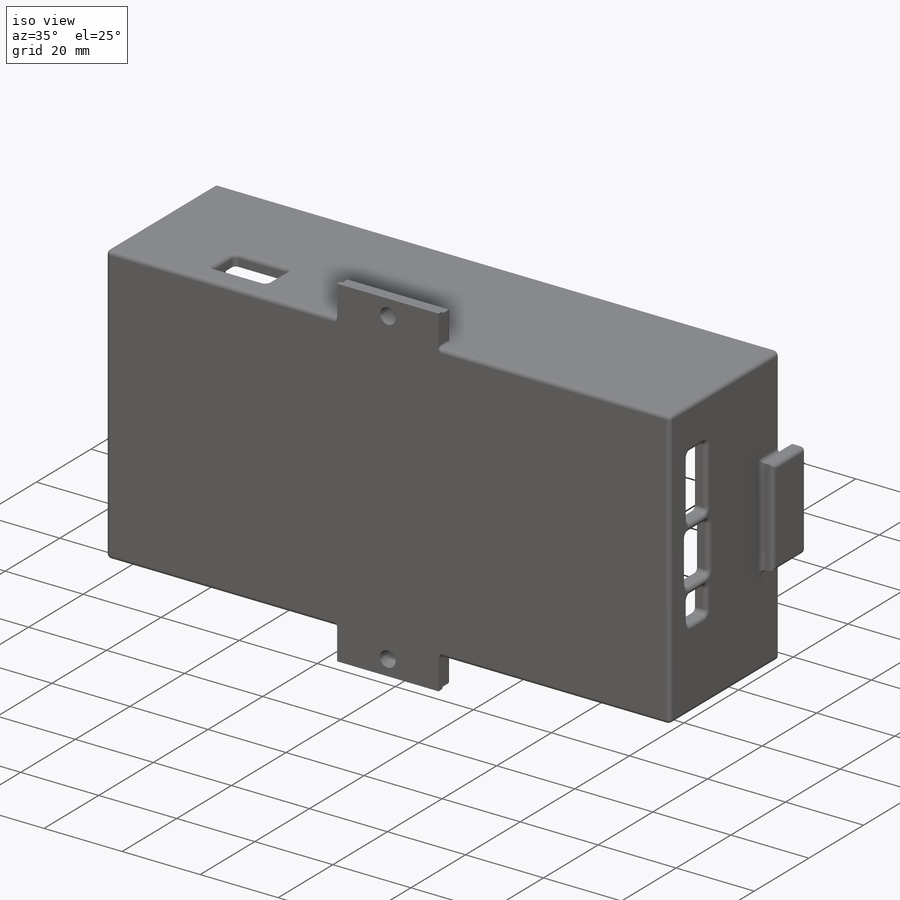
[diagram: iso view]
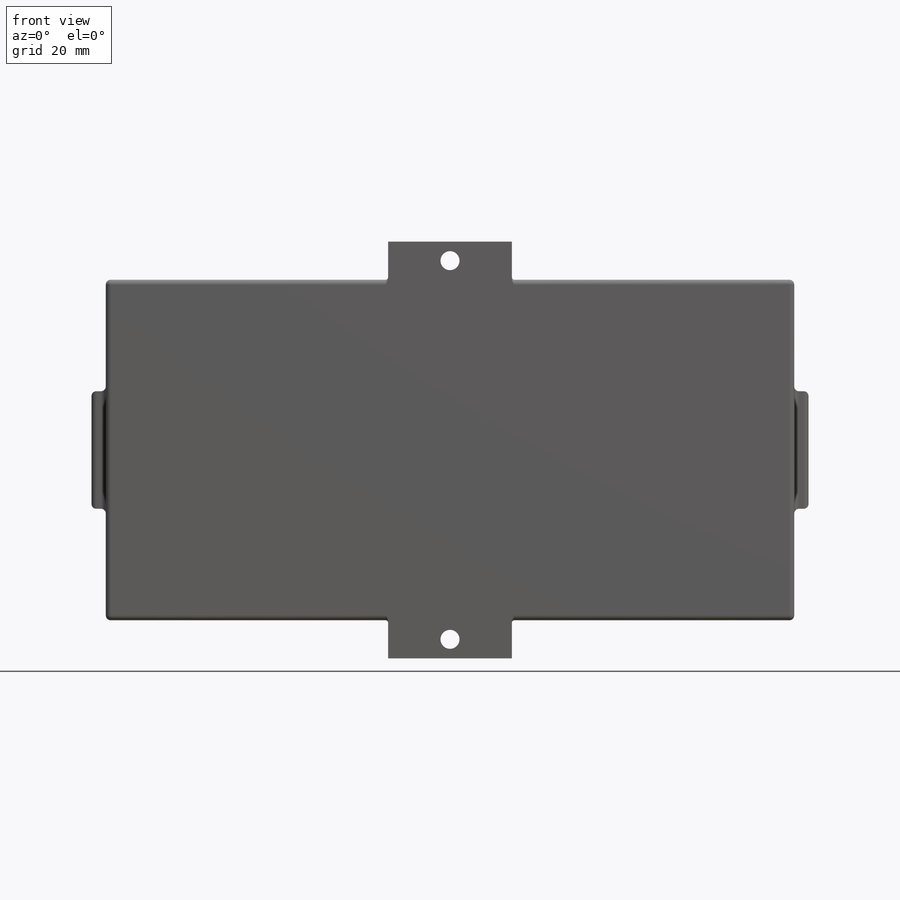
[diagram: front view]
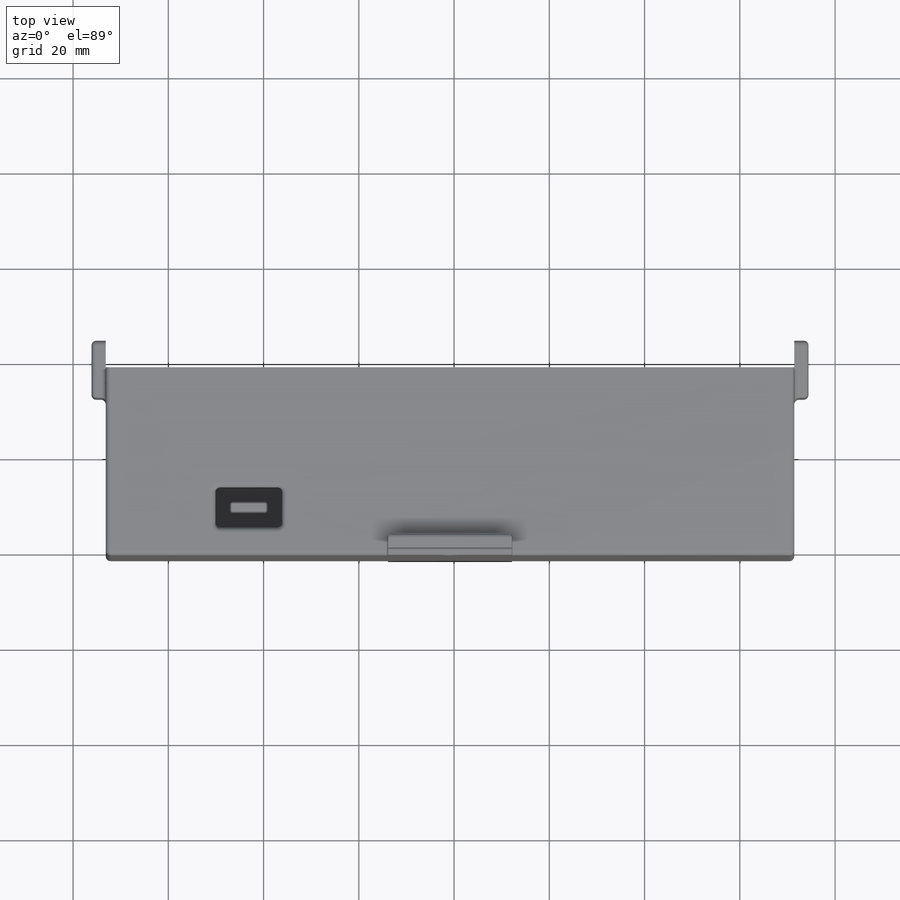
[diagram: top view]
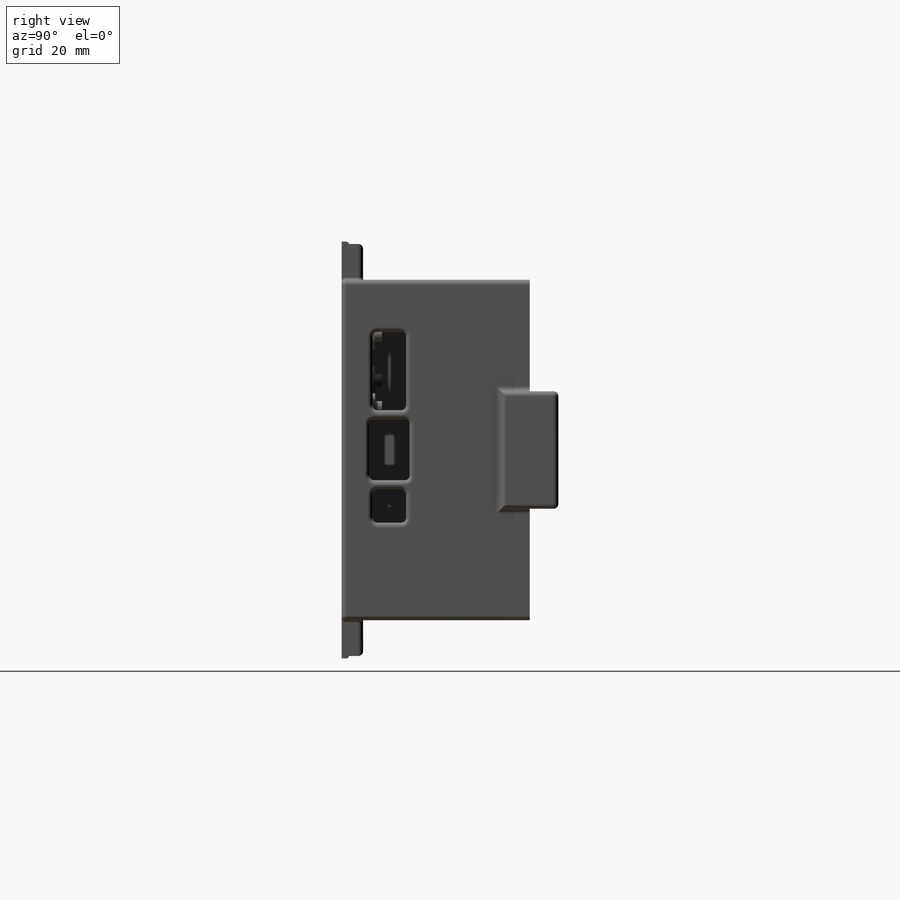
[diagram: right view]
SOLIDWORKS PART (.sldprt)
format: sldprt  version: not decoded by parser v0  size: 997,376 bytes
history: native  units: mm
features: sketch x24, fillet x15, extrude x12, cut_extrude x9, plane x3, material x1 (+9 scaffold rows collapsed)
feature tree (73):
  scaffold x9  (default folders/planes/origin — collapsed)
  material  "Material <não especificado>"
  plane  "Plano frontal"
  plane  "Plano superior"
  plane  "Plano direito"
  sketch  "Esboço2"
  extrude  "Ressalto-extrusão1"  Depth=1.5mm
  sketch  "Arquivos locais1"  dims[D5=3.0mm D1=23.5mm D2=4.5mm D3=10.5mm D4=9.0mm]
  sketch  "Arquivos locais2"  dims[D1=12.0mm D2=12.0mm]
  sketch  "Arquivos locais3"  dims[D1=6.0mm D2=~12.59367mm]
  extrude  "Ressalto-extrusão4"  Depth=5.5mm
  sketch  "Arquivos locais4"  dims[D1=2.7mm]
  extrude  "Ressalto-extrusão5"  Depth=1.5mm
  sketch  "Arquivos locais5"
  extrude  "Ressalto-extrusão6"  [1 undecoded]
  sketch  "Arquivos locais6"  dims[D1=1.0mm]
  extrude  "Ressalto-extrusão7"  [1 undecoded]
  sketch  "Arquivos locais7"  dims[D1=3.0mm]
  extrude  "Ressalto-extrusão8"  Depth=16.5mm
  sketch  "Arquivos locais8"
  cut_extrude  "Corte-extrusão1"  Depth=7mm
  sketch  "Arquivos locais9"
  sketch  "Arquivos locais10"
  cut_extrude  "Corte-extrusão2"  Depth=5mm
  fillet  "Filete1"  Radius=1mm
  fillet  "Filete2"  Radius=1mm
  fillet  "Filete3"  Radius=2mm
  fillet  "Filete4"  Radius=1mm
  sketch  "Esboço3"
  cut_extrude  "Corte-extrusão3"  Depth=10mm
  sketch  "Esboço7"  dims[D1=26.0mm D2=26.0mm D3=26.0mm D4=26.0mm]
  extrude  "Ressalto-extrusão9"  [1 undecoded]
  fillet  "Filete6"  Radius=0.5mm
  fillet  "Filete7"  Radius=0.5mm
  sketch  "Esboço8"
  cut_extrude  "Corte-extrusão8"  Depth=10mm
  sketch  "Esboço9"
  cut_extrude  "Corte-extrusão9"  Depth=10mm
  sketch  "Esboço10"
  extrude  "Ressalto-extrusão10"  [1 undecoded]
  sketch  "Esboço11"
  cut_extrude  "Corte-extrusão10"  Depth=10mm
  sketch  "Esboço12"
  extrude  "Ressalto-extrusão11"  [1 undecoded]
  sketch  "Esboço13"
  cut_extrude  "Corte-extrusão11"  Depth=10mm
  sketch  "Esboço14"  dims[D1=2.0mm]
  cut_extrude  "Corte-extrusão12"  Depth=10mm
  sketch  "Esboço15"
  extrude  "Ressalto-extrusão13"  Depth=3mm
  fillet  "Filete8"  Radius=1mm
  sketch  "Esboço17"  dims[D1=0.0mm]
  extrude  "Ressalto-extrusão14"  Depth=23mm
  sketch  "Esboço18"  dims[D1=23.0mm D2=14.0mm D3=4.84mm D4=8.42mm]
  cut_extrude  "Corte-extrusão13"  Depth=7mm
  sketch  "Esboço19"
  extrude  "Ressalto-extrusão15"  Depth=6mm
  fillet  "Filete9"  Radius=1mm
  fillet  "Filete10"  Radius=1mm
  fillet  "Filete11"  Radius=1mm
  fillet  "Filete12"  Radius=1mm
  fillet  "Filete13"  Radius=1mm
  fillet  "Filete14"  Radius=1mm
  fillet  "Filete15"  Radius=1mm
  fillet  "Filete16"  Radius=1mm
decode coverage: 41 of 60 modeling features carry decoded parameters
note: ~ marks probable driven/reference dimensions
note: 5 parameter values undecoded
summary: no parameter record found for 5 features
note: suppression state not decoded; provenance and decode notes live in map.json
